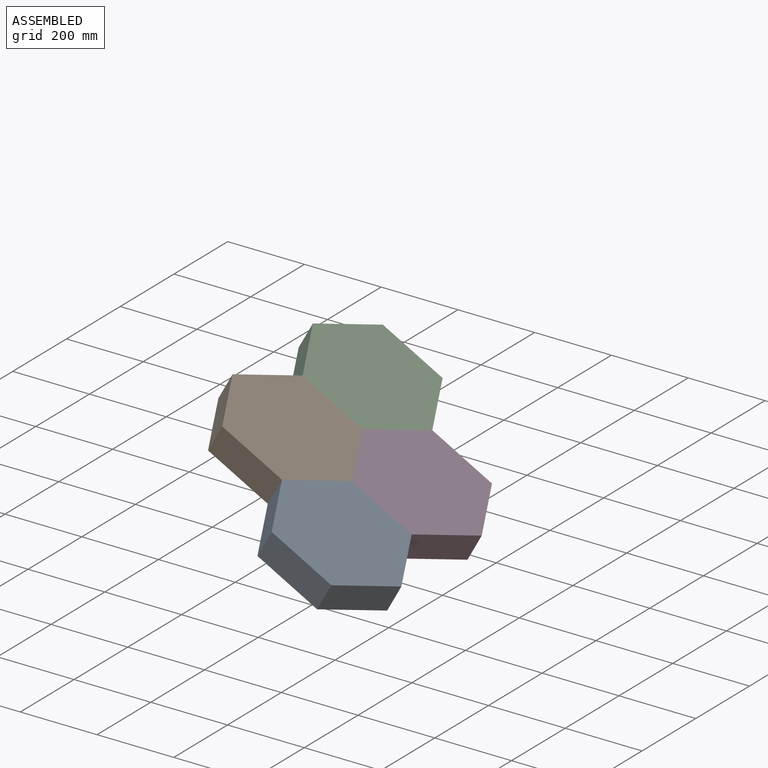
[diagram: assembled view]
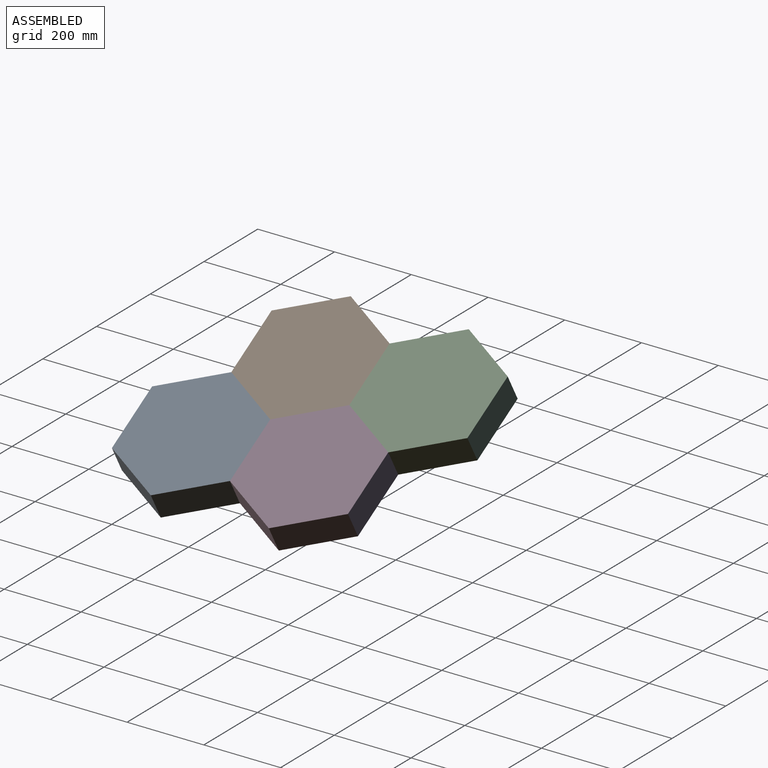
[diagram: assembled view, second angle]
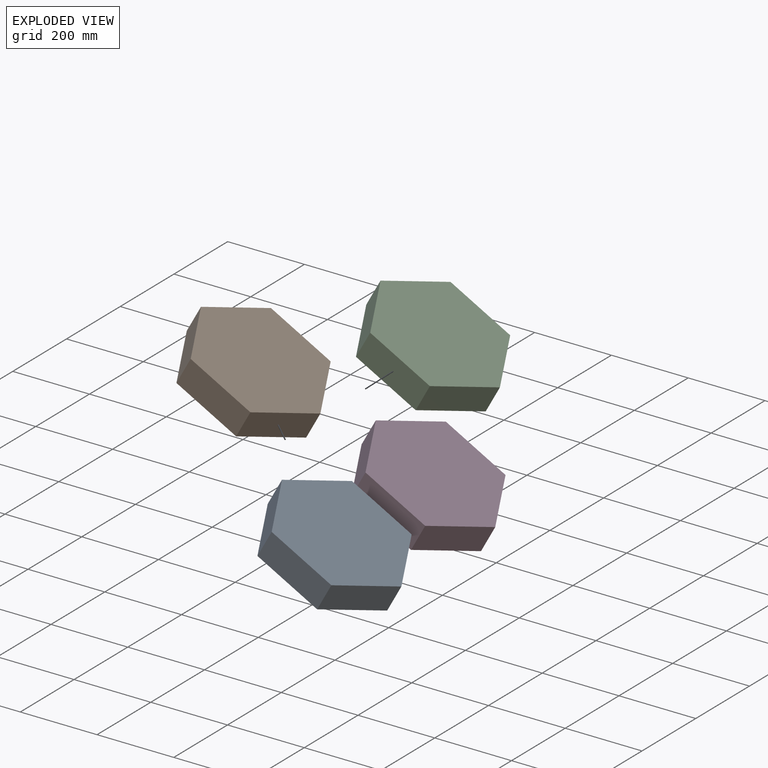
[diagram: exploded view]
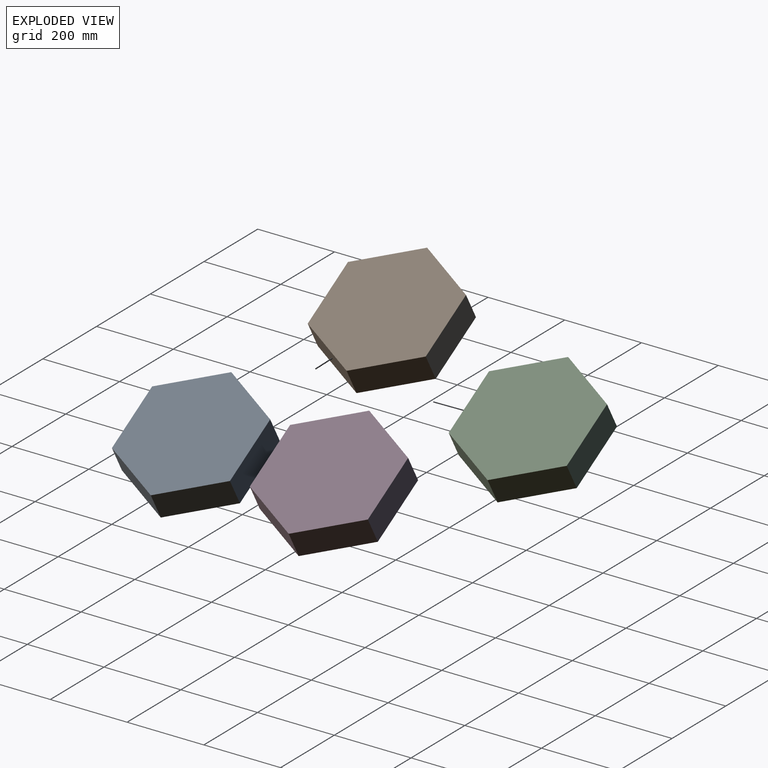
[diagram: exploded view, second angle]
ASSEMBLY  parts=4 mates=3
PART A: 8 faces, bbox 307.5x76.2x351.9 mm
  f0: plane 151.04x90.31mm, normal (0.51,0,-0.86), area 13409.4mm2, adj f1,f5,f6,f7
  f1: plane 175.96x76.2mm, normal (1,0,0.02), area 13409.4mm2, adj f0,f2,f6,f7
  f2: plane 153.73x85.65mm, normal (0.49,0,0.87), area 13409.4mm2, adj f1,f3,f6,f7
  f3: plane 151.04x90.31mm, normal (-0.51,0,0.86), area 13409.4mm2, adj f2,f4,f6,f7
  f4: plane 175.96x76.2mm, normal (-1,0,-0.02), area 13409.4mm2, adj f3,f5,f6,f7
  f5: plane 153.73x85.65mm, normal (-0.49,0,-0.87), area 13409.4mm2, adj f0,f4,f6,f7
  f6: plane 351.91x307.46mm, normal (0,-1,0), area 80456.4mm2, adj f0,f1,f2,f3,f4,f5
  f7: plane 351.91x307.46mm, normal (0,1,0), area 80456.4mm2, adj f0,f1,f2,f3,f4,f5
PART B: same geometry as A
PART C: same geometry as A
PART D: same geometry as A
PLACE A rot(axis=(-0.87,-0.01,0.49),90deg) t=(477.54,-453.16,88.62)mm
PLACE B rot(axis=(-0.9,0.44,-0.01),104.1deg) t=(244.94,-304.82,218.21)mm
PLACE C rot(axis=(-0.45,-0.45,0.77),104.9deg) t=(240.86,-0.05,220.48)mm
PLACE D rot(axis=(0.88,0.01,-0.48),90deg) t=(510.55,-148.4,157.46)mm
MATE fastened B.f1 <-> A.f3  axis (0.76,-0.49,-0.43) through (379.78,-378.99,186.7)mm
MATE fastened D.f2 <-> A.f2  axis (0.01,-1,-0.01) through (494.04,-300.78,123.04)mm
MATE fastened B.f3 <-> C.f4  axis (-0.01,1,0.01) through (261.44,-152.44,252.63)mm
